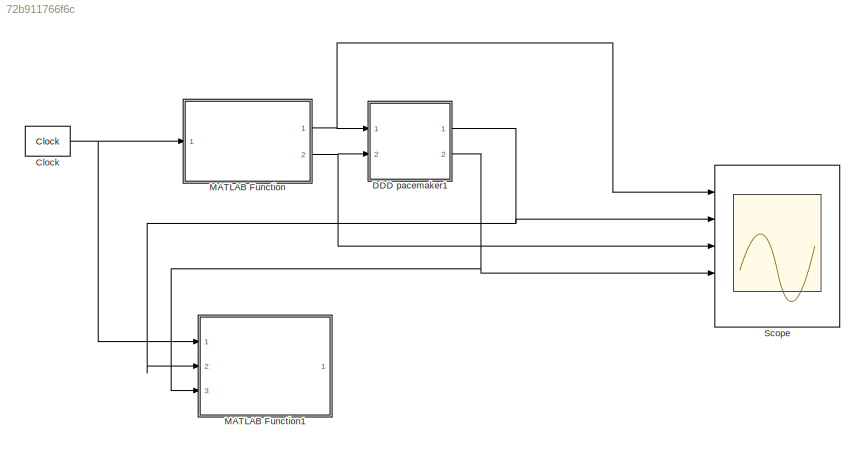
MODEL slx_72b911766f6c
KIND model
CONFIG AbsTol = auto
CONFIG EnableMultiTasking = on
CONFIG FixedStep = 1
CONFIG MaxStep = auto
CONFIG MinStep = auto
CONFIG RelTol = 1e-3
CONFIG SampleTimeConstraint = Unconstrained
CONFIG Solver = FixedStepDiscrete
CONFIG SolverName = FixedStepDiscrete
CONFIG StartTime = 0.0
CONFIG StopTime = 6000
BLOCK [Clock] Clock
  DisplayTime = on
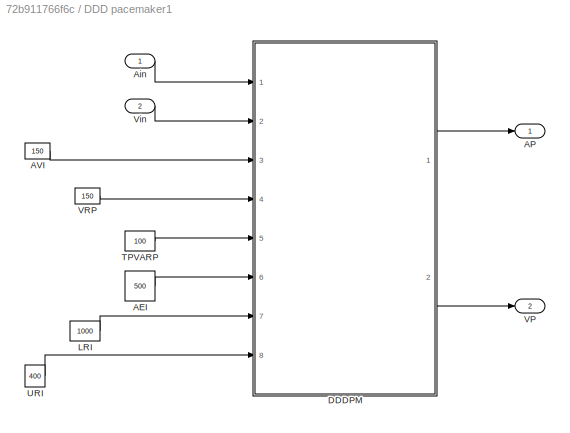
BLOCK [SubSystem] DDD pacemaker1
  Ports = [2, 2]
  RequestExecContextInheritance = off
BLOCK [Constant] DDD pacemaker1/AEI
  Value = 500
BLOCK [Outport] DDD pacemaker1/AP
  IconDisplay = Port number
BLOCK [Constant] DDD pacemaker1/AVI
  OutDataTypeStr = uint16
  Value = 150
BLOCK [Inport] DDD pacemaker1/Ain
  IconDisplay = Port number
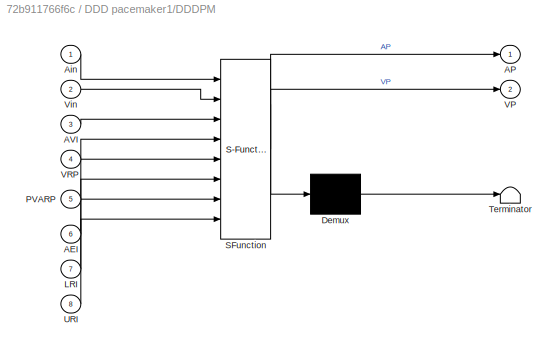
BLOCK [SubSystem] DDD pacemaker1/DDDPM
  ErrorFcn = Stateflow.Translate.translate
  PermitHierarchicalResolution = ExplicitOnly
  Ports = [8, 2]
  RequestExecContextInheritance = off
  SFBlockType = Chart
  TreatAsAtomicUnit = on
BLOCK [Demux] DDD pacemaker1/DDDPM/ Demux 
  Outputs = 1
  Ports = [1, 1]
BLOCK [S-Function] DDD pacemaker1/DDDPM/ SFunction 
  EnableBusSupport = on
  FunctionName = sf_sfun
  PortCounts = [8 3]
  Ports = [8, 3]
  SFcnIsStateOwnerBlock = off
  SFunctionDeploymentMode = off
  Tag = Stateflow S-Function 1
BLOCK [Terminator] DDD pacemaker1/DDDPM/ Terminator 
BLOCK [Inport] DDD pacemaker1/DDDPM/AEI
  IconDisplay = Port number
  Port = 6
BLOCK [Outport] DDD pacemaker1/DDDPM/AP
  IconDisplay = Port number
BLOCK [Inport] DDD pacemaker1/DDDPM/AVI
  IconDisplay = Port number
  Port = 3
BLOCK [Inport] DDD pacemaker1/DDDPM/Ain
  IconDisplay = Port number
BLOCK [Inport] DDD pacemaker1/DDDPM/LRI
  IconDisplay = Port number
  Port = 7
BLOCK [Inport] DDD pacemaker1/DDDPM/PVARP
  IconDisplay = Port number
  Port = 5
BLOCK [Inport] DDD pacemaker1/DDDPM/URI
  IconDisplay = Port number
  Port = 8
BLOCK [Outport] DDD pacemaker1/DDDPM/VP
  IconDisplay = Port number
  Port = 2
BLOCK [Inport] DDD pacemaker1/DDDPM/VRP
  IconDisplay = Port number
  Port = 4
BLOCK [Inport] DDD pacemaker1/DDDPM/Vin
  IconDisplay = Port number
  Port = 2
BLOCK [Constant] DDD pacemaker1/LRI
  OutDataTypeStr = uint16
  Value = 1000
BLOCK [Constant] DDD pacemaker1/TPVARP
  OutDataTypeStr = uint16
  Value = 100
BLOCK [Constant] DDD pacemaker1/URI
  OutDataTypeStr = uint16
  Value = 400
BLOCK [Outport] DDD pacemaker1/VP
  IconDisplay = Port number
  Port = 2
BLOCK [Constant] DDD pacemaker1/VRP
  OutDataTypeStr = uint16
  Value = 150
BLOCK [Inport] DDD pacemaker1/Vin
  IconDisplay = Port number
  Port = 2
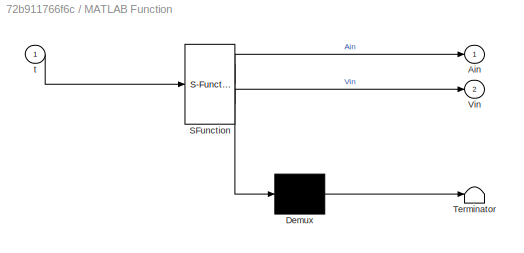
BLOCK [SubSystem] MATLAB Function
  ErrorFcn = Stateflow.Translate.translate
  PermitHierarchicalResolution = ExplicitOnly
  Ports = [1, 2]
  RequestExecContextInheritance = off
  SFBlockType = MATLAB Function
  TreatAsAtomicUnit = on
BLOCK [Demux] MATLAB Function/ Demux 
  Outputs = 1
  Ports = [1, 1]
BLOCK [S-Function] MATLAB Function/ SFunction 
  EnableBusSupport = on
  FunctionName = sf_sfun
  PortCounts = [1 3]
  Ports = [1, 3]
  SFcnIsStateOwnerBlock = off
  SFunctionDeploymentMode = off
  Tag = Stateflow S-Function 4
BLOCK [Terminator] MATLAB Function/ Terminator 
BLOCK [Outport] MATLAB Function/Ain
  IconDisplay = Port number
BLOCK [Outport] MATLAB Function/Vin
  IconDisplay = Port number
  Port = 2
BLOCK [Inport] MATLAB Function/t
  IconDisplay = Port number
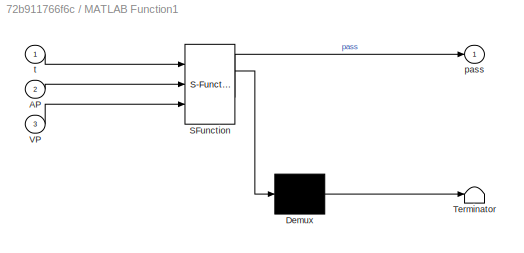
BLOCK [SubSystem] MATLAB Function1
  ErrorFcn = Stateflow.Translate.translate
  PermitHierarchicalResolution = ExplicitOnly
  Ports = [3, 1]
  RequestExecContextInheritance = off
  SFBlockType = MATLAB Function
  TreatAsAtomicUnit = on
BLOCK [Demux] MATLAB Function1/ Demux 
  Outputs = 1
  Ports = [1, 1]
BLOCK [S-Function] MATLAB Function1/ SFunction 
  EnableBusSupport = on
  FunctionName = sf_sfun
  PortCounts = [3 2]
  Ports = [3, 2]
  SFcnIsStateOwnerBlock = off
  SFunctionDeploymentMode = off
  Tag = Stateflow S-Function 7
BLOCK [Terminator] MATLAB Function1/ Terminator 
BLOCK [Inport] MATLAB Function1/AP
  IconDisplay = Port number
  Port = 2
BLOCK [Inport] MATLAB Function1/VP
  IconDisplay = Port number
  Port = 3
BLOCK [Outport] MATLAB Function1/pass
  IconDisplay = Port number
BLOCK [Inport] MATLAB Function1/t
  IconDisplay = Port number
BLOCK [Scope] Scope
  Floating = off
  NumInputPorts = 5
  Ports = [5]
  ScopeSpecificationString = Simulink.scopes.TimeScopeBlockCfg('CurrentConfiguration', extmgr.ConfigurationSet(extmgr.Configuration('Core','General UI',true),extmgr.Configuration('Core','Source UI',true),extmgr.Configuration('Sources','WiredSimulink',true,'DataLoggingVariableName','ScopeData1'),extmgr.Configuration('Visuals','Time Domain',true,'SerializedDisplays',{struct('MinYLimReal','-0.125','MaxYLimReal','1.125','YLabelRe...<+1756ch>
NET Clock:1 -> MATLAB Function1:1, MATLAB Function:1
LINE DDD pacemaker1/AEI:1 -> DDD pacemaker1/DDDPM:6
LINE DDD pacemaker1/AVI:1 -> DDD pacemaker1/DDDPM:3
LINE DDD pacemaker1/Ain:1 -> DDD pacemaker1/DDDPM:1
LINE DDD pacemaker1/DDDPM:1 -> DDD pacemaker1/AP:1
LINE DDD pacemaker1/DDDPM:2 -> DDD pacemaker1/VP:1
LINE DDD pacemaker1/LRI:1 -> DDD pacemaker1/DDDPM:7
LINE DDD pacemaker1/TPVARP:1 -> DDD pacemaker1/DDDPM:5
LINE DDD pacemaker1/URI:1 -> DDD pacemaker1/DDDPM:8
LINE DDD pacemaker1/VRP:1 -> DDD pacemaker1/DDDPM:4
LINE DDD pacemaker1/Vin:1 -> DDD pacemaker1/DDDPM:2
NET DDD pacemaker1:1 -> MATLAB Function1:2, Scope:2
NET DDD pacemaker1:2 -> MATLAB Function1:3, Scope:4
NET MATLAB Function:1 -> DDD pacemaker1:1, Scope:1
NET MATLAB Function:2 -> DDD pacemaker1:2, Scope:3
note: NET lines group one-source signal fan-out (src -> all destinations, sorted); 1:1 wires keep LINE
CHART DDD pacemaker1/DDDPM states=21 transitions=36
  STATE_LABEL 'DDDPM\n'
  STATE_LABEL 'AVI\n'
  STATE_LABEL 'ActiveAVI'
  STATE_LABEL 'CAVI'
  STATE_LABEL 'IdleAVI'
  STATE_LABEL '{VP=false,VP1=false;}'
  STATE_LABEL '[tmpAVI>0]/{tmpAVI=tmpAVI-1;}'
  STATE_LABEL '[AS==true || AP1==true]/\n{tmpAVI=AVI;}'
  STATE_LABEL '[tmpAVI<=0&&enterURI==true]/\n{VP=true, VP1=true;}'
  STATE_LABEL '[VS==true || VP1==true]'
  STATE_LABEL '{VP=false,VP1=false;}'
  STATE_LABEL 'URI\n'
  STATE_LABEL 'IdleURI'
  STATE_LABEL 'ActiveURI'
  STATE_LABEL '{enterURI=true;}'
  STATE_LABEL '[VP1==true || VS==true]/\n{tmpURI=URI, enterURI=false;}'
  STATE_LABEL '[tmpURI<=0]/{enterURI=true;}'
  STATE_LABEL '[tmpURI>0]/{tmpURI = tmpURI - 1;}'
  STATE_LABEL '[VS==true || VP1==true]/\n{tmpURI=URI, enterURI=false;}'
  STATE_LABEL 'PVARP\n'
  STATE_LABEL 'AinPVARP'
  STATE_LABEL 'IdlePVARP'
  STATE_LABEL 'ActivePVARP'
  STATE_LABEL 'PVARPAR'
  STATE_LABEL '[Ain==true]/{AS=true}'
  STATE_LABEL '{AS=false;}'
  STATE_LABEL '{AS=false;}'
  STATE_LABEL '[VS==true || VP1==true]/{tmpPVARP=PVARP;}'
  STATE_LABEL '[tmpPVARP<=0]'
  STATE_LABEL '[tmpPVARP>0]/\n{tmpPVARP = tmpPVARP - 1;}'
  STATE_LABEL '{AR=false,tmpPVARP = tmpPVARP - 1;}'
  STATE_LABEL '[Ain==true]/{AR=true;}'
  STATE_LABEL 'LRI\n'
  STATE_LABEL 'IdleLRI'
  STATE_LABEL 'LRIVP'
  STATE_LABEL 'ActiveLRI'
  STATE_LABEL '[VS==true||VP1==true]/\n{tmpLRI=LRI;}'
  STATE_LABEL '{tmpLRI = LRI,APLRI=2,AP=false,AP1=false;}'
  STATE_LABEL '[tmpLRI>AVI]/\n{tmpLRI = tmpLRI-1;}'
  STATE_LABEL '/{VP=false, VP1=false, tmpLRI=LRI;}'
CHART MATLAB Function states=1 transitions=1
  STATE_LABEL 'eML_blk_kernel()'
  STATE_LABEL 'SCRIPT:\nfunction [Ain,Vin] = PM_tester_in(t)\n\n%Ain\n%if mod(t-50,200)==0\nif t==199 || t==1204\n    Ain=true;\nelse\n    Ain=false;\nend\n\n\n\n\n%Vin\n%if mod(t-150,200)==0\nif t==1202\n    Vin=true;\nelse\n    Vin=false;\nend\n\nVin=false;\n\n\n'
CHART MATLAB Function1 states=1 transitions=1
  STATE_LABEL 'eML_blk_kernel()'
  STATE_LABEL 'SCRIPT:\nfunction pass = PM_tester_out(t,AP,VP)\npass=true;\n% Evaluating PM outputs\n% if t==200\n%     if AS==true\n%         \n%     else\n%         pass=false;\n%         return;\n%     end\n% end\n\nif t==350\n    if VP==true\n        \n    else\n        pass=false;\n        return;\n    end\nend\n\nif t==1201\n    if AP==true\n        \n    else\n        pass=false;\n        return;\n    end\nend\n\n% if t==1203\n%     if ...<+224ch>'
